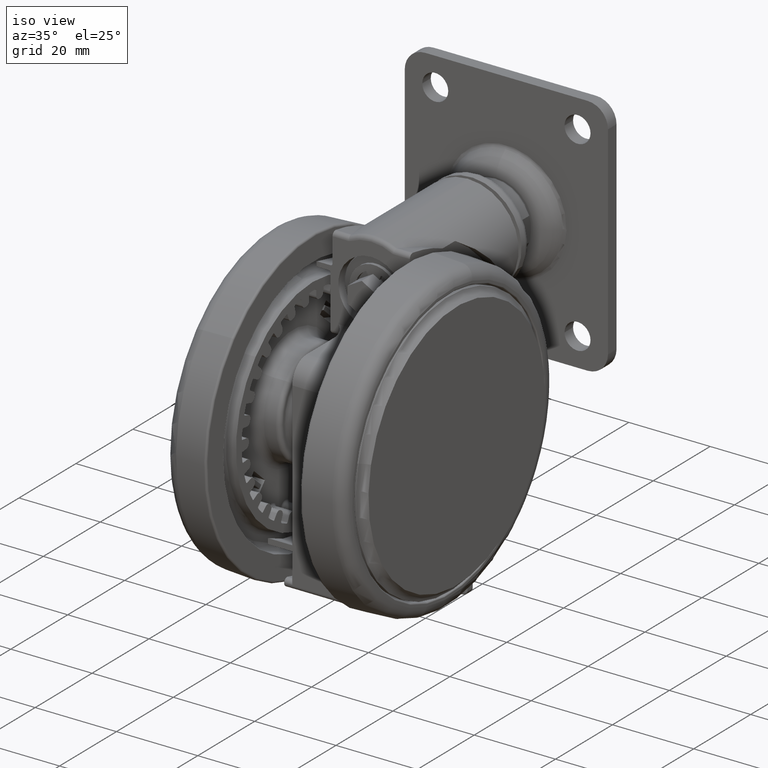
[diagram: clean part render]
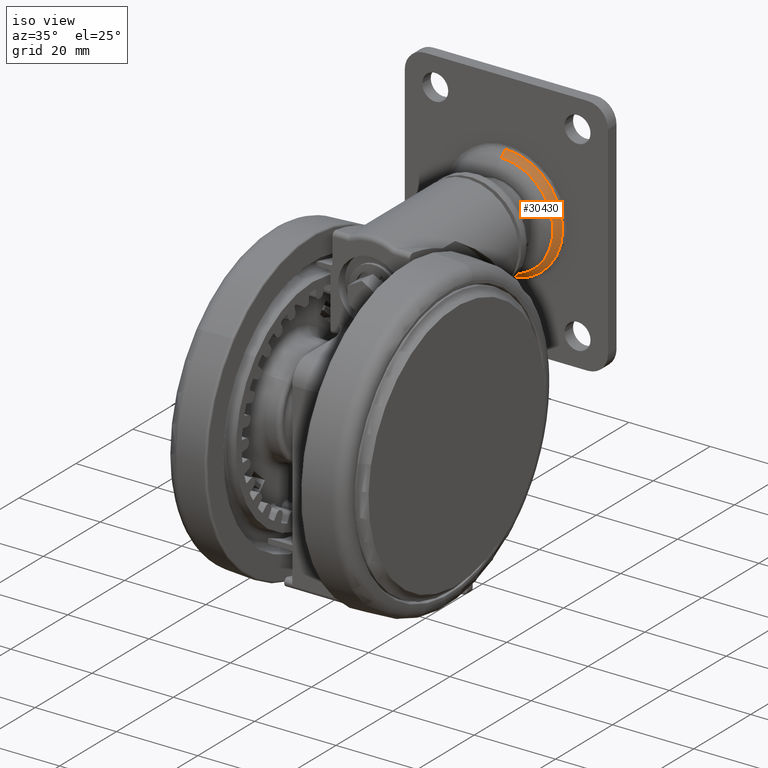
[diagram: same view with one face highlighted and labeled with its STEP entity id]
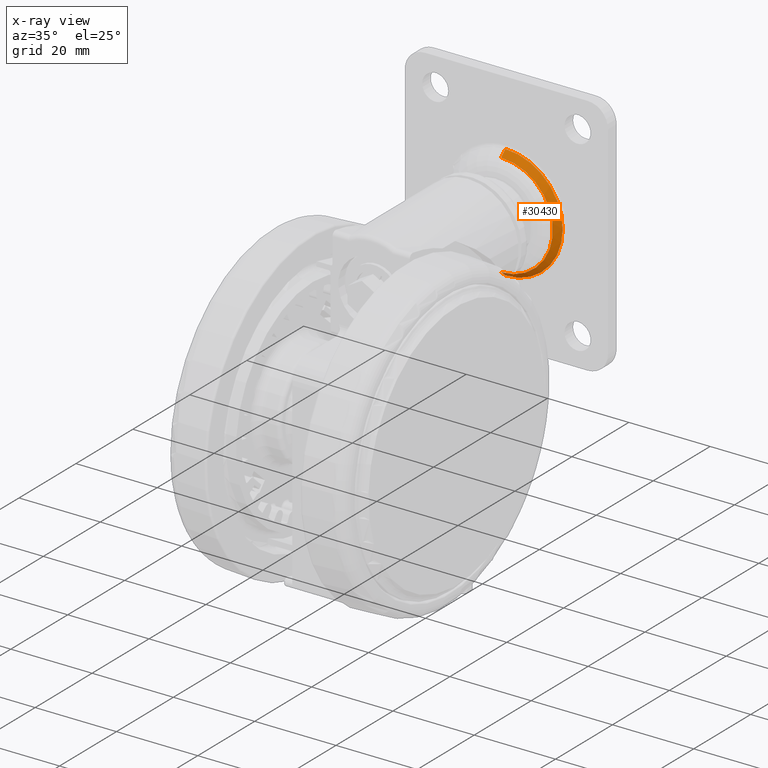
[diagram: x-ray of the same camera — body ghosted, the highlighted face saturated]
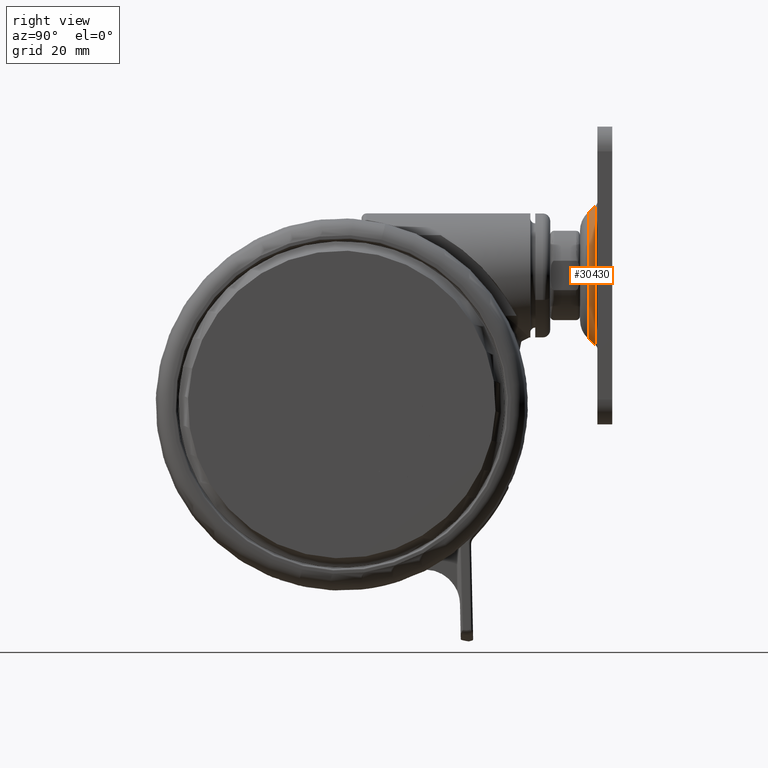
[diagram: same view with one face highlighted and labeled with its STEP entity id]
A machine part, iso view. The second image highlights one B-rep face of the part: STEP entity #30430.
The next image is the same camera in x-ray: the body ghosted, the highlighted face saturated — about 2% of this face is hidden behind the body in this view.
A second angle (right view) of the same face is appended — the face is thin or edge-on in the first view.
In plain terms, the highlighted conical surface has half-angle 41.806 deg.
Its self-contained STEP definition (entity closure, byte-faithful):
#820 = DIRECTION ( 'NONE',  ( -0.9721524254595795800, -0.2343494435091681100, 4.733165431326070100E-030 ) ) ;
#5700 = CARTESIAN_POINT ( 'NONE',  ( -45.17655462449766200, -24.52944789400113400, -23.84999999999990500 ) ) ;
#5754 = EDGE_CURVE ( 'NONE', #73341, #13940, #69798, .T. ) ;
#6601 = CARTESIAN_POINT ( 'NONE',  ( -40.57023089082127900, -36.52473635038910500, -23.84999999999990500 ) ) ;
#7135 = AXIS2_PLACEMENT_3D ( 'NONE', #6601, #820, #52239 ) ;
#11457 = DIRECTION ( 'NONE',  ( -0.5684313450335696200, -0.8227307007662513200, -8.163594476223612400E-017 ) ) ;
#12478 = AXIS2_PLACEMENT_3D ( 'NONE', #18964, #59091, #24694 ) ;
#13141 = VECTOR ( 'NONE', #11457, 1000.000000000000100 ) ;
#13940 = VERTEX_POINT ( 'NONE', #5700 ) ;
#17723 = CARTESIAN_POINT ( 'NONE',  ( -42.19076972432739600, -36.91538740867106600, -23.84999999999990500 ) ) ;
#18301 = ORIENTED_EDGE ( 'NONE', *, *, #69108, .T. ) ;
#18964 = CARTESIAN_POINT ( 'NONE',  ( -43.64865661322858200, -37.26682919101480000, -23.84999999999990500 ) ) ;
#20536 = CARTESIAN_POINT ( 'NONE',  ( -39.20498482415710800, -49.30132692334107200, -23.84999999999990500 ) ) ;
#22130 = EDGE_CURVE ( 'NONE', #13940, #56245, #23787, .T. ) ;
#22503 = DIRECTION ( 'NONE',  ( -0.8808698087391216800, 0.4733586167504538200, 3.528141236378105700E-030 ) ) ;
#23510 = DIRECTION ( 'NONE',  ( 0.2343494435091683400, -0.9721524254595794700, 0.0000000000000000000 ) ) ;
#23766 = EDGE_CURVE ( 'NONE', #52988, #26994, #38842, .T. ) ;
#23787 = LINE ( 'NONE', #33756, #52507 ) ;
#23902 = CARTESIAN_POINT ( 'NONE',  ( -43.64865661322858200, -37.26682919101480000, -23.84999999999990500 ) ) ;
#24694 = DIRECTION ( 'NONE',  ( 0.0000000000000000000, 0.0000000000000000000, -1.000000000000000000 ) ) ;
#26575 = LINE ( 'NONE', #68650, #13141 ) ;
#26994 = VERTEX_POINT ( 'NONE', #59159 ) ;
#29645 = DIRECTION ( 'NONE',  ( 0.0000000000000000000, 0.0000000000000000000, -1.000000000000000000 ) ) ;
#30430 = ADVANCED_FACE ( 'NONE', ( #38729 ), #50411, .T. ) ;
#33756 = CARTESIAN_POINT ( 'NONE',  ( -43.20666213029941400, -25.58802156396884100, -23.84999999999990500 ) ) ;
#34435 = ORIENTED_EDGE ( 'NONE', *, *, #23766, .T. ) ;
#35614 = ORIENTED_EDGE ( 'NONE', *, *, #22130, .T. ) ;
#36614 = AXIS2_PLACEMENT_3D ( 'NONE', #23902, #64041, #29645 ) ;
#38729 = FACE_OUTER_BOUND ( 'NONE', #49434, .T. ) ;
#38842 = CIRCLE ( 'NONE', #12478, 14.08185236588487800 ) ;
#41852 = AXIS2_PLACEMENT_3D ( 'NONE', #17723, #57853, #23510 ) ;
#42337 = ORIENTED_EDGE ( 'NONE', *, *, #5754, .T. ) ;
#43367 = CIRCLE ( 'NONE', #36614, 14.08185236588487800 ) ;
#49434 = EDGE_LOOP ( 'NONE', ( #60103, #42337, #35614, #18301, #34435 ) ) ;
#50411 = CONICAL_SURFACE ( 'NONE', #7135, 11.25000000000000000, 0.7296490525266983200 ) ;
#52239 = DIRECTION ( 'NONE',  ( -0.2343494435091680300, 0.9721524254595794700, 0.0000000000000000000 ) ) ;
#52507 = VECTOR ( 'NONE', #22503, 1000.000000000000100 ) ;
#52988 = VERTEX_POINT ( 'NONE', #64037 ) ;
#56245 = VERTEX_POINT ( 'NONE', #70905 ) ;
#57853 = DIRECTION ( 'NONE',  ( -0.9721524254595795800, -0.2343494435091681100, 4.733165431326070100E-030 ) ) ;
#59091 = DIRECTION ( 'NONE',  ( 0.9721524254595788100, 0.2343494435091715000, -4.733165431326070100E-030 ) ) ;
#59159 = CARTESIAN_POINT ( 'NONE',  ( -40.34858234770514700, -50.95653612347351900, -23.84999999999990500 ) ) ;
#60103 = ORIENTED_EDGE ( 'NONE', *, *, #73567, .F. ) ;
#64037 = CARTESIAN_POINT ( 'NONE',  ( -43.64865661322857400, -37.26682919101481400, -9.768147634115052800 ) ) ;
#64041 = DIRECTION ( 'NONE',  ( 0.9721524254595788100, 0.2343494435091715000, -4.733165431326070100E-030 ) ) ;
#68650 = CARTESIAN_POINT ( 'NONE',  ( -37.93379965134313600, -47.46145113680938000, -23.84999999999990500 ) ) ;
#69108 = EDGE_CURVE ( 'NONE', #56245, #52988, #43367, .T. ) ;
#69798 = CIRCLE ( 'NONE', #41852, 12.74073817057499800 ) ;
#70905 = CARTESIAN_POINT ( 'NONE',  ( -46.94873087875203800, -23.57712225855601000, -23.84999999999990500 ) ) ;
#73341 = VERTEX_POINT ( 'NONE', #20536 ) ;
#73567 = EDGE_CURVE ( 'NONE', #73341, #26994, #26575, .T. ) ;